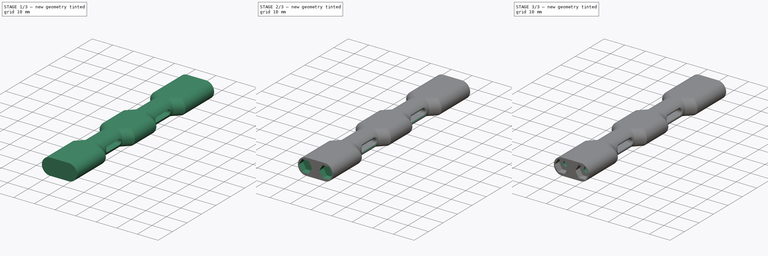
[diagram: build sequence overview — one tinted view per stage of 3, left to right]
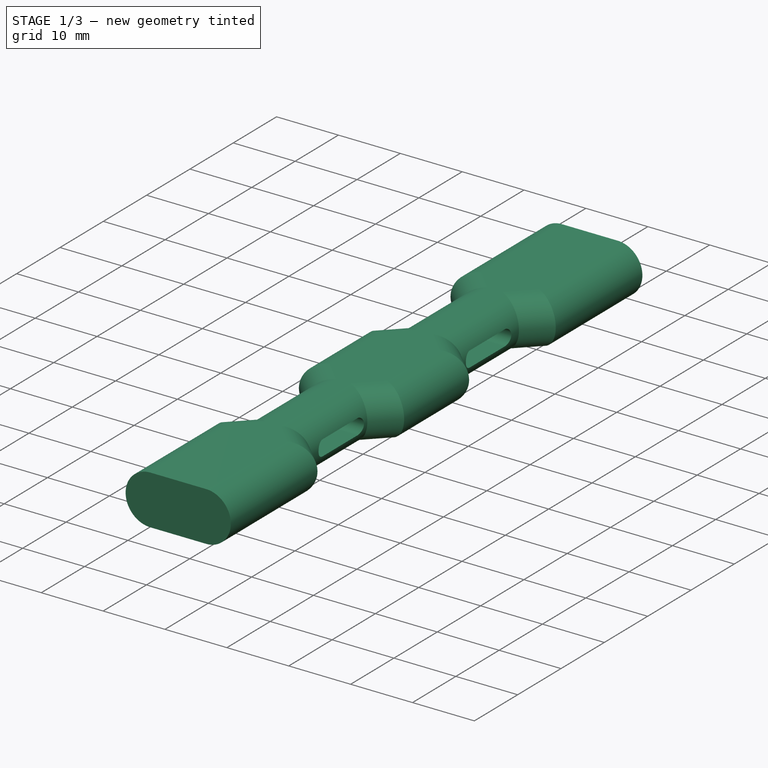
[diagram: stage 1 of 3 — iso view after this stage's code; geometry added in this stage tinted green]
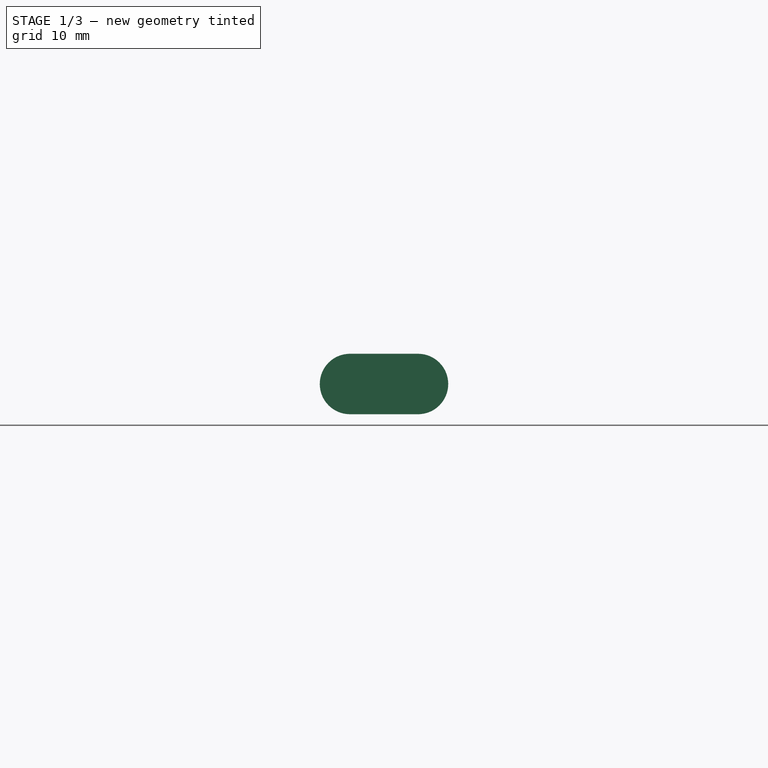
[diagram: stage 1 of 3 — front view after this stage's code; geometry added in this stage tinted green]
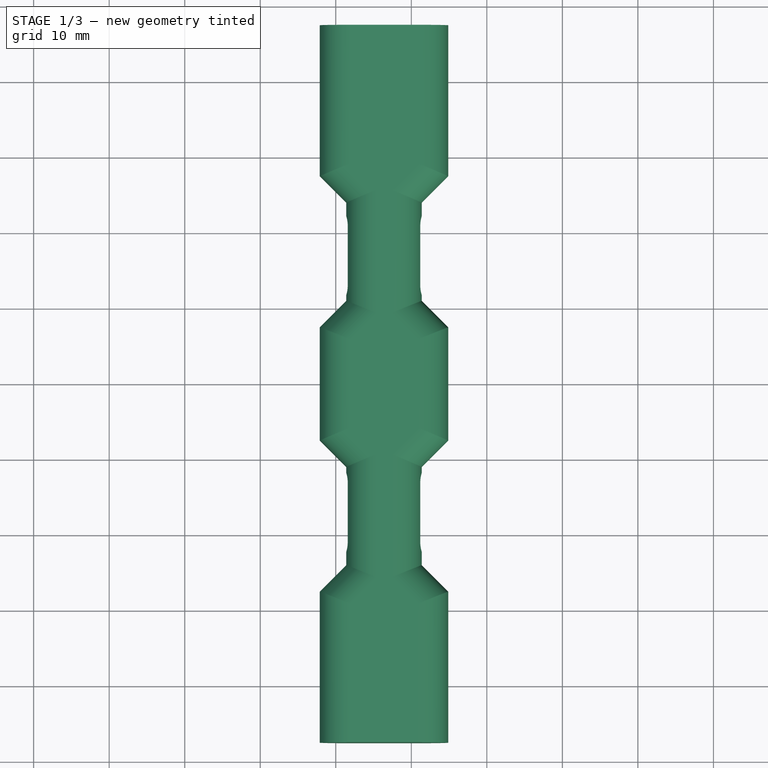
[diagram: stage 1 of 3 — top view after this stage's code; geometry added in this stage tinted green]
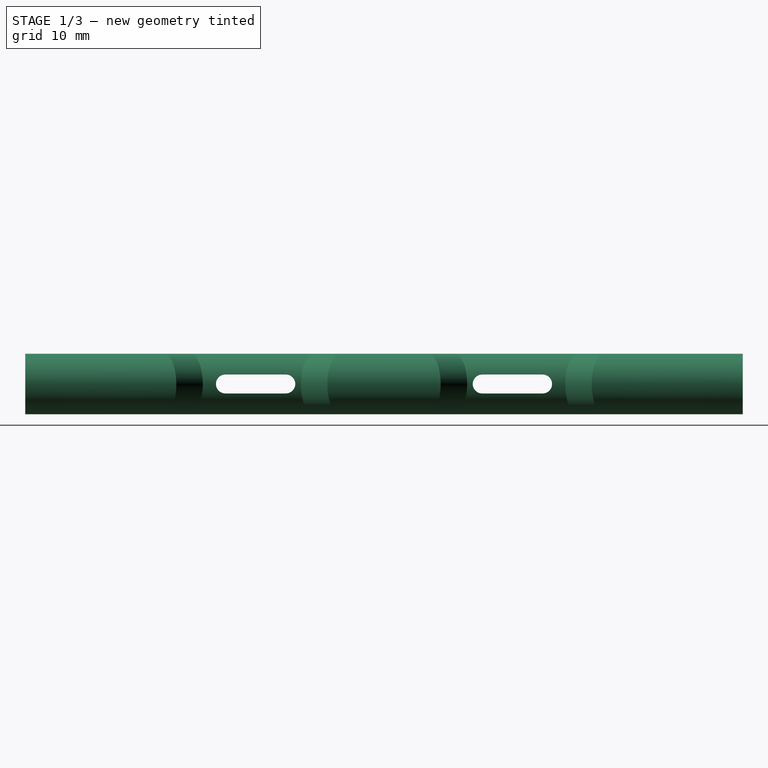
[diagram: stage 1 of 3 — right view after this stage's code; geometry added in this stage tinted green]
FCSTD DOCUMENT  (FreeCAD 0.21R33771 (Git))
Label: spine
License: All rights reserved
LicenseURL: https://en.wikipedia.org/wiki/All_rights_reserved
objects: Sketcher::SketchObject×6, PartDesign::Pocket×5, PartDesign::Fillet×2, PartDesign::Pad×1, PartDesign::Body×1, App::Part×1
note: 23 computed .brp shape members not serialized (recipe doc carries the construction recipe); baked Part::Feature solids carry a one-line shape summary decoded from their .brp

FEATURE [Sketcher::SketchObject] Sketch057
  AttachmentOffset = pos=(116.5,0,-42.5) rot=(0,0,1;0rad)
  FullyConstrained = true
  MapMode = 5
  Placement = pos=(116.5,42.5,9.4e-15) rot=(1,0,0;1.5708rad)
  Support = -> [XZ_Plane055]
  sketch-geometry (2):
    g0: Circle CenterX=-5 CenterY=4 CenterZ=0 NormalX=0 NormalY=0 NormalZ=1 AngleXU=0 Radius=1.25
    g1: Circle CenterX=5 CenterY=4 CenterZ=0 NormalX=0 NormalY=0 NormalZ=1 AngleXU=0 Radius=1.25
  constraints (6):
    c: Equal(g0,g1)
    c: Diameter(g0) = 2.5
    c: Horizontal(g0,g1)
    c: DistanceX(g0,g1) = 10
    c: DistanceY(g-1,g0) = 4
    c: DistanceX(g0,g-1) = 5
FEATURE [Sketcher::SketchObject] Sketch056
  AttachmentOffset = pos=(116.5,0,-47.5) rot=(0,0,1;0rad)
  FullyConstrained = true
  MapMode = 5
  Placement = pos=(116.5,47.5,1.05e-14) rot=(1,0,0;1.5708rad)
  Support = -> [XZ_Plane055]
  sketch-geometry (14):
    g0: LineSegment StartX=-3.375 StartY=6.81458 StartZ=0 EndX=-6.625 EndY=6.81458 EndZ=0
    g1: LineSegment StartX=-6.625 StartY=6.81458 StartZ=0 EndX=-8.25 EndY=4 EndZ=0
    g2: LineSegment StartX=-8.25 StartY=4 StartZ=0 EndX=-6.625 EndY=1.18542 EndZ=0
    g3: LineSegment StartX=-6.625 StartY=1.18542 StartZ=0 EndX=-3.375 EndY=1.18542 EndZ=0
    g4: LineSegment StartX=-3.375 StartY=1.18542 StartZ=0 EndX=-1.75 EndY=4 EndZ=0
    g5: LineSegment StartX=-1.75 StartY=4 StartZ=0 EndX=-3.375 EndY=6.81458 EndZ=0
    g6: Circle CenterX=-5 CenterY=4 CenterZ=0 NormalX=0 NormalY=0 NormalZ=1 AngleXU=0 Radius=3.25
    g7: LineSegment StartX=3.375 StartY=6.81458 StartZ=0 EndX=1.75 EndY=4 EndZ=0
    g8: LineSegment StartX=1.75 StartY=4 StartZ=0 EndX=3.375 EndY=1.18542 EndZ=0
    g9: LineSegment StartX=3.375 StartY=1.18542 StartZ=0 EndX=6.625 EndY=1.18542 EndZ=0
    g10: LineSegment StartX=6.625 StartY=1.18542 StartZ=0 EndX=8.25 EndY=4 EndZ=0
    g11: LineSegment StartX=8.25 StartY=4 StartZ=0 EndX=6.625 EndY=6.81458 EndZ=0
    g12: LineSegment StartX=6.625 StartY=6.81458 StartZ=0 EndX=3.375 EndY=6.81458 EndZ=0
    g13: Circle CenterX=5 CenterY=4 CenterZ=0 NormalX=0 NormalY=0 NormalZ=1 AngleXU=0 Radius=3.25
  constraints (34):
    c: Coincident(g0,g1)
    c: Coincident(g1,g2)
    c: Coincident(g2,g3)
    c: Coincident(g3,g4)
    c: Coincident(g4,g5)
    c: Coincident(g5,g0)
    c: Equal(g0, g1-g5) x5
    c: PointOnObject(g0,g6)
    c: PointOnObject(g1,g6)
    c: PointOnObject(g2,g6)
    c: PointOnObject(g3,g6)
    c: PointOnObject(g4,g6)
    c: PointOnObject(g5,g6)
    c: Coincident(g7,g8)
    c: Coincident(g8,g9)
    c: Coincident(g9,g10)
    c: Coincident(g10,g11)
    c: Coincident(g11,g12)
    c: Coincident(g12,g7)
    c: Equal(g7, g8-g12) x5
    c: PointOnObject(g7,g13)
    c: PointOnObject(g8,g13)
    c: PointOnObject(g9,g13)
    c: PointOnObject(g10,g13)
    c: PointOnObject(g11,g13)
    c: PointOnObject(g12,g13)
    c: Equal(g6,g13)
    c: Horizontal(g12)
    c: Diameter(g6) = 6.5
    c: Horizontal(g6,g13)
    c: DistanceY(g-1,g13) = 4
    c: DistanceX(g-1,g13) = 5
    c: DistanceX(g6,g-1) = 5
    c: Horizontal(g0)
FEATURE [Sketcher::SketchObject] Sketch055
  AttachmentOffset = pos=(116.5,0,47.5) rot=(0,0,1;0rad)
  FullyConstrained = true
  MapMode = 5
  Placement = pos=(116.5,-47.5,-1.05e-14) rot=(1,0,0;1.5708rad)
  Support = -> [XZ_Plane055]
  sketch-geometry (14):
    g0: LineSegment StartX=-3.375 StartY=6.81458 StartZ=0 EndX=-6.625 EndY=6.81458 EndZ=0
    g1: LineSegment StartX=-6.625 StartY=6.81458 StartZ=0 EndX=-8.25 EndY=4 EndZ=0
    g2: LineSegment StartX=-8.25 StartY=4 StartZ=0 EndX=-6.625 EndY=1.18542 EndZ=0
    g3: LineSegment StartX=-6.625 StartY=1.18542 StartZ=0 EndX=-3.375 EndY=1.18542 EndZ=0
    g4: LineSegment StartX=-3.375 StartY=1.18542 StartZ=0 EndX=-1.75 EndY=4 EndZ=0
    g5: LineSegment StartX=-1.75 StartY=4 StartZ=0 EndX=-3.375 EndY=6.81458 EndZ=0
    g6: Circle CenterX=-5 CenterY=4 CenterZ=0 NormalX=0 NormalY=0 NormalZ=1 AngleXU=0 Radius=3.25
    g7: LineSegment StartX=3.375 StartY=6.81458 StartZ=0 EndX=1.75 EndY=4 EndZ=0
    g8: LineSegment StartX=1.75 StartY=4 StartZ=0 EndX=3.375 EndY=1.18542 EndZ=0
    g9: LineSegment StartX=3.375 StartY=1.18542 StartZ=0 EndX=6.625 EndY=1.18542 EndZ=0
    g10: LineSegment StartX=6.625 StartY=1.18542 StartZ=0 EndX=8.25 EndY=4 EndZ=0
    g11: LineSegment StartX=8.25 StartY=4 StartZ=0 EndX=6.625 EndY=6.81458 EndZ=0
    g12: LineSegment StartX=6.625 StartY=6.81458 StartZ=0 EndX=3.375 EndY=6.81458 EndZ=0
    g13: Circle CenterX=5 CenterY=4 CenterZ=0 NormalX=0 NormalY=0 NormalZ=1 AngleXU=0 Radius=3.25
  constraints (34):
    c: Coincident(g0,g1)
    c: Coincident(g1,g2)
    c: Coincident(g2,g3)
    c: Coincident(g3,g4)
    c: Coincident(g4,g5)
    c: Coincident(g5,g0)
    c: Equal(g0, g1-g5) x5
    c: PointOnObject(g0,g6)
    c: PointOnObject(g1,g6)
    c: PointOnObject(g2,g6)
    c: PointOnObject(g3,g6)
    c: PointOnObject(g4,g6)
    c: PointOnObject(g5,g6)
    c: Coincident(g7,g8)
    c: Coincident(g8,g9)
    c: Coincident(g9,g10)
    c: Coincident(g10,g11)
    c: Coincident(g11,g12)
    c: Coincident(g12,g7)
    c: Equal(g7, g8-g12) x5
    c: PointOnObject(g7,g13)
    c: PointOnObject(g8,g13)
    c: PointOnObject(g9,g13)
    c: PointOnObject(g10,g13)
    c: PointOnObject(g11,g13)
    c: PointOnObject(g12,g13)
    c: Equal(g6,g13)
    c: Horizontal(g12)
    c: Diameter(g6) = 6.5
    c: Horizontal(g6,g13)
    c: DistanceY(g-1,g13) = 4
    c: DistanceX(g-1,g13) = 5
    c: DistanceX(g6,g-1) = 5
    c: Horizontal(g0)
FEATURE [Sketcher::SketchObject] Sketch054
  FullyConstrained = true
  MapMode = 5
  Placement = pos=(0,0,0) rot=(0.57735,0.57735,0.57735;2.0944rad)
  Support = -> [YZ_Plane055]
  sketch-geometry (8):
    g0: ArcOfCircle CenterX=-21 CenterY=4 CenterZ=0 NormalX=0 NormalY=0 NormalZ=1 AngleXU=0 Radius=1.25 StartAngle=1.5708 EndAngle=4.71239
    g1: ArcOfCircle CenterX=-13 CenterY=4 CenterZ=0 NormalX=0 NormalY=0 NormalZ=1 AngleXU=0 Radius=1.25 StartAngle=4.71239 EndAngle=7.85398
    g2: LineSegment StartX=-21 StartY=2.75 StartZ=0 EndX=-13 EndY=2.75 EndZ=0
    g3: LineSegment StartX=-13 StartY=5.25 StartZ=0 EndX=-21 EndY=5.25 EndZ=0
    g4: ArcOfCircle CenterX=13 CenterY=4 CenterZ=0 NormalX=0 NormalY=0 NormalZ=1 AngleXU=0 Radius=1.25 StartAngle=1.5708 EndAngle=4.71239
    g5: ArcOfCircle CenterX=21 CenterY=4 CenterZ=0 NormalX=0 NormalY=0 NormalZ=1 AngleXU=0 Radius=1.25 StartAngle=4.71239 EndAngle=7.85398
    g6: LineSegment StartX=13 StartY=2.75 StartZ=0 EndX=21 EndY=2.75 EndZ=0
    g7: LineSegment StartX=21 StartY=5.25 StartZ=0 EndX=13 EndY=5.25 EndZ=0
  constraints (20):
    c: Tangent(g0,g2) = -1.5708
    c: Tangent(g2,g1) = -1.5708
    c: Tangent(g1,g3) = -1.5708
    c: Tangent(g3,g0) = -1.5708
    c: Equal(g0,g1)
    c: Tangent(g4,g6) = -1.5708
    c: Tangent(g6,g5) = -1.5708
    c: Tangent(g5,g7) = -1.5708
    c: Tangent(g7,g4) = -1.5708
    c: Equal(g4,g5)
    c: Equal(g4,g0)
    c: Horizontal(g0,g1)
    c: Horizontal(g4,g5)
    c: Horizontal(g4,g1)
    c: Equal(g7,g3)
    c: DistanceY(g-1,g1) = 4
    c: DistanceY(g0,g0) = 2.5
    c: DistanceX(g3,g3) = 8
    c: DistanceX(g1,g-1) = 13
    c: DistanceX(g-1,g4) = 13
FEATURE [Sketcher::SketchObject] Sketch053
  FullyConstrained = false
  MapMode = 5
  Support = -> [XY_Plane055]
  sketch-geometry (20):
    g0: LineSegment StartX=107.885 StartY=47.5 StartZ=0 EndX=107.885 EndY=27.5 EndZ=0
    g1: LineSegment StartX=107.885 StartY=27.5 StartZ=0 EndX=111.385 EndY=24 EndZ=0
    g2: LineSegment StartX=111.385 StartY=24 StartZ=0 EndX=111.385 EndY=11 EndZ=0
    g3: LineSegment StartX=111.385 StartY=11 StartZ=0 EndX=107.885 EndY=7.5 EndZ=0
    g4: LineSegment StartX=107.885 StartY=7.5 StartZ=0 EndX=107.885 EndY=-7.5 EndZ=0
    g5: LineSegment StartX=107.885 StartY=-7.5 StartZ=0 EndX=111.385 EndY=-11 EndZ=0
    g6: LineSegment StartX=111.385 StartY=-11 StartZ=0 EndX=111.385 EndY=-24 EndZ=0
    g7: LineSegment StartX=111.385 StartY=-24 StartZ=0 EndX=107.885 EndY=-27.5 EndZ=0
    g8: LineSegment StartX=107.885 StartY=-27.5 StartZ=0 EndX=107.885 EndY=-47.5 EndZ=0
    g9: LineSegment StartX=107.885 StartY=-47.5 StartZ=0 EndX=124.885 EndY=-47.5 EndZ=0
    g10: LineSegment StartX=124.885 StartY=-47.5 StartZ=0 EndX=124.885 EndY=-27.5 EndZ=0
    g11: LineSegment StartX=124.885 StartY=-27.5 StartZ=0 EndX=121.385 EndY=-24 EndZ=0
    g12: LineSegment StartX=121.385 StartY=-24 StartZ=0 EndX=121.385 EndY=-11 EndZ=0
    g13: LineSegment StartX=121.385 StartY=-11 StartZ=0 EndX=124.885 EndY=-7.5 EndZ=0
    g14: LineSegment StartX=124.885 StartY=-7.5 StartZ=0 EndX=124.885 EndY=7.5 EndZ=0
    g15: LineSegment StartX=124.885 StartY=7.5 StartZ=0 EndX=121.385 EndY=11 EndZ=0
    g16: LineSegment StartX=121.385 StartY=11 StartZ=0 EndX=121.385 EndY=24 EndZ=0
    g17: LineSegment StartX=121.385 StartY=24 StartZ=0 EndX=124.885 EndY=27.5 EndZ=0
    g18: LineSegment StartX=124.885 StartY=27.5 StartZ=0 EndX=124.885 EndY=47.5 EndZ=0
    g19: LineSegment StartX=124.885 StartY=47.5 StartZ=0 EndX=107.885 EndY=47.5 EndZ=0
  constraints (59):
    c: Vertical(g0)
    c: Coincident(g0,g1)
    c: Coincident(g1,g2)
    c: Vertical(g2)
    c: Coincident(g2,g3)
    c: Coincident(g3,g4)
    c: Vertical(g4)
    c: Coincident(g4,g5)
    c: Coincident(g5,g6)
    c: Vertical(g6)
    c: Coincident(g6,g7)
    c: Coincident(g7,g8)
    c: Vertical(g8)
    c: Coincident(g8,g9)
    c: Horizontal(g9)
    c: Coincident(g9,g10)
    c: Vertical(g10)
    c: Coincident(g10,g11)
    c: Coincident(g11,g12)
    c: Vertical(g12)
    c: Coincident(g12,g13)
    c: Coincident(g13,g14)
    c: Vertical(g14)
    c: Coincident(g14,g15)
    c: Coincident(g15,g16)
    c: Vertical(g16)
    c: Coincident(g16,g17)
    c: Coincident(g17,g18)
    c: Vertical(g18)
    c: Coincident(g18,g19)
    c: Coincident(g19,g0)
    c: Horizontal(g19)
    c: Equal(g4,g14)
    c: Equal(g19,g9)
    c: Equal(g0,g18)
    c: Equal(g18,g8)
    c: Equal(g8,g10)
    c: Equal(g2,g16)
    c: Equal(g16,g12)
    c: Equal(g12,g6)
    c: Horizontal(g1,g16)
    c: Horizontal(g3,g14)
    c: Horizontal(g5,g12)
    c: Angle(g1,g2) = 2.35619
    c: Angle(g2,g3) = 2.35619
    c: Angle(g16,g17) = 2.35619
    c: Angle(g15) = 2.35619
    c: Angle(g12,g13) = 2.35619
    c: Angle(g11,g12) = 2.35619
    c: Angle(g5,g6) = 2.35619
    c: Angle(g6,g7) = 2.35619
    c: Equal(g1,g3)
    c: DistanceY(g-1,g3) = 7.5
    c: DistanceY(g4,g-1) = 7.5
    c: DistanceY(g0,g0) = 20
    c: DistanceX(g1,g16) = 10
    c: DistanceX(g5,g12) = 10
    c: DistanceY(g3,g0) = 20
    c: DistanceX(g3,g14) = 17
FEATURE [PartDesign::Pad] Pad014
  Direction = (0,0,1)
  Length = 8
  Length2 = 10
  Profile = -> Sketch053
  ReferenceAxis = -> Sketch053 [N_Axis]
  Type = 0
FEATURE [PartDesign::Fillet] Fillet032  label="Fillet033"
  Base = -> Pad014 [Edge46,Edge43,Edge40,Edge37,Edge34,Edge28,Edge25,Edge22,Edge19,Edge16,Edge13,Edge10,Edge7,Edge4,Edge58,Edge52,Edge55,Edge51,Edge54,Edge57,Edge3,Edge49,Edge48,Edge45,Edge42,Edge39,Edge36,Edge33,Edge27,Edge24,Edge21,Edge18,Edge15,Edge12,Edge9,Edge6]
  BaseFeature = -> Pad014
  Radius = 3.99
  SupportTransform = false
  UseAllEdges = false
FEATURE [PartDesign::Pocket] Pocket021
  BaseFeature = -> Fillet032
  Direction = (-1,2e-16,-3e-16)
  Length = 5
  Length2 = 5
  Midplane = true
  Profile = -> Sketch054
  ReferenceAxis = -> Sketch054 [N_Axis]
  Type = 1
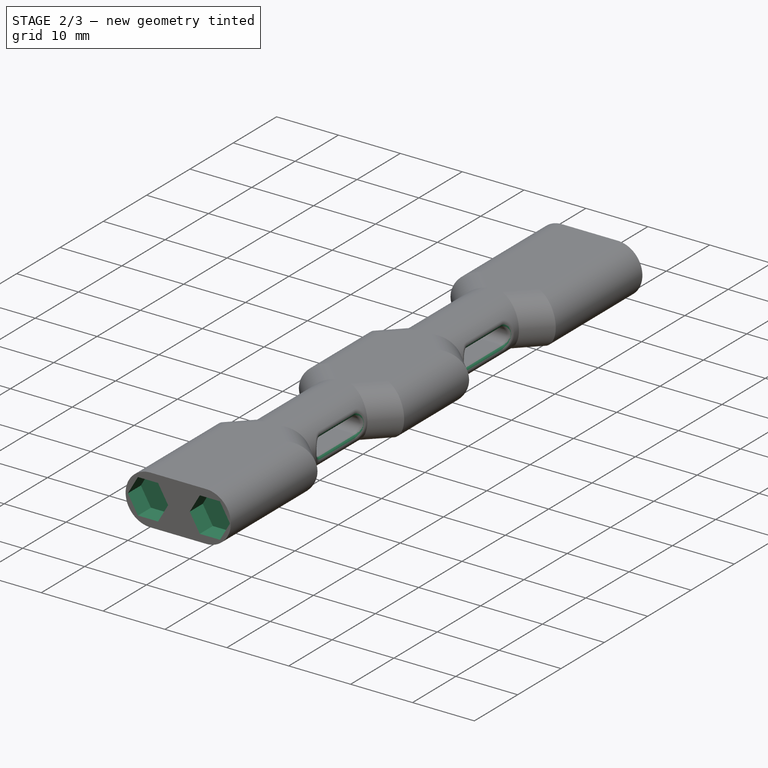
[diagram: stage 2 of 3 — iso view after this stage's code; geometry added in this stage tinted green]
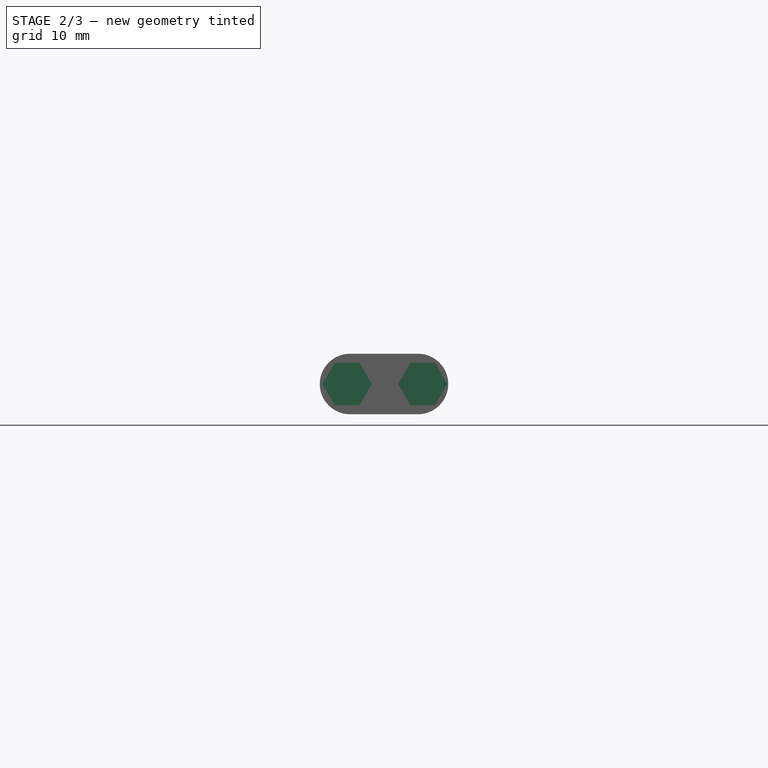
[diagram: stage 2 of 3 — front view after this stage's code; geometry added in this stage tinted green]
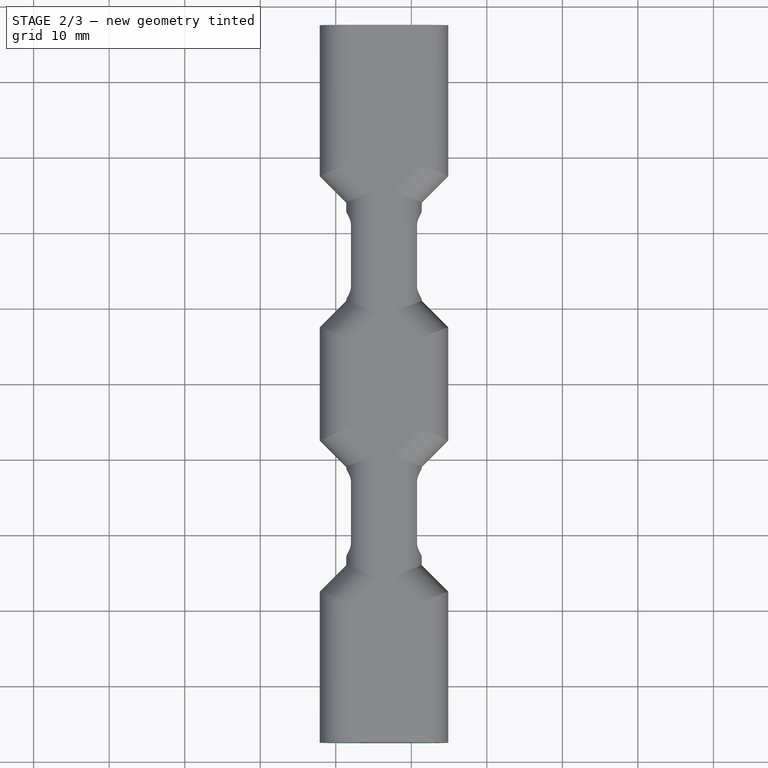
[diagram: stage 2 of 3 — top view after this stage's code; geometry added in this stage tinted green]
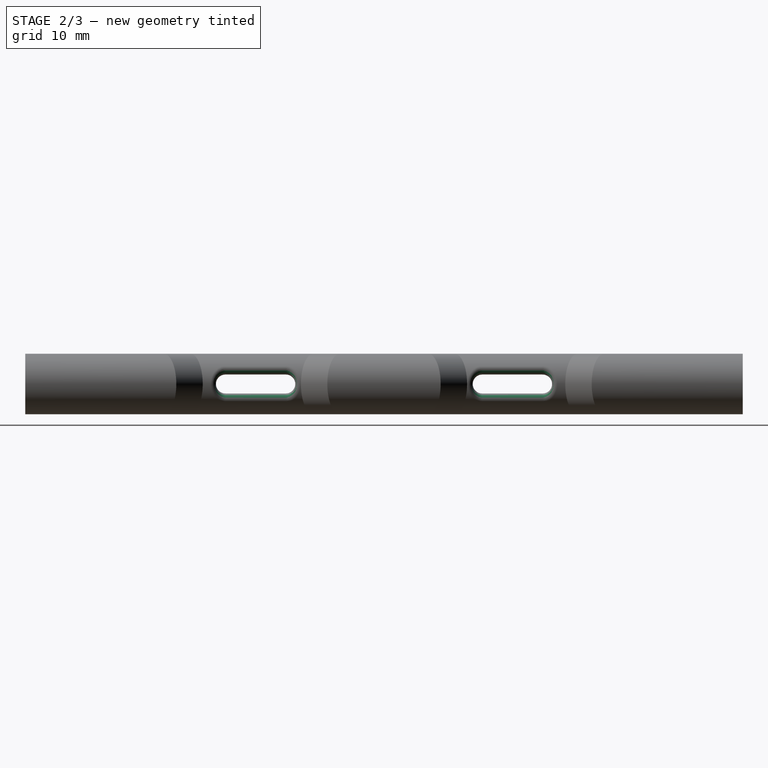
[diagram: stage 2 of 3 — right view after this stage's code; geometry added in this stage tinted green]
FEATURE [PartDesign::Fillet] Fillet033  label="Fillet034"
  Base = -> Pocket021 [Edge133,Edge134,Edge126,Edge127,Edge128,Edge132,Edge155,Edge150,Edge149,Edge156,Edge154,Edge151,Edge91,Edge92,Edge93,Edge113,Edge114,Edge115,Edge86,Edge85,Edge87,Edge109,Edge110,Edge108]
  BaseFeature = -> Pocket021
  Radius = 0.7
  SupportTransform = false
  UseAllEdges = false
FEATURE [PartDesign::Pocket] Pocket022
  BaseFeature = -> Fillet033
  Direction = (0,1,2e-16)
  Length = 3
  Length2 = 5
  Profile = -> Sketch055
  ReferenceAxis = -> Sketch055 [N_Axis]
  Type = 0
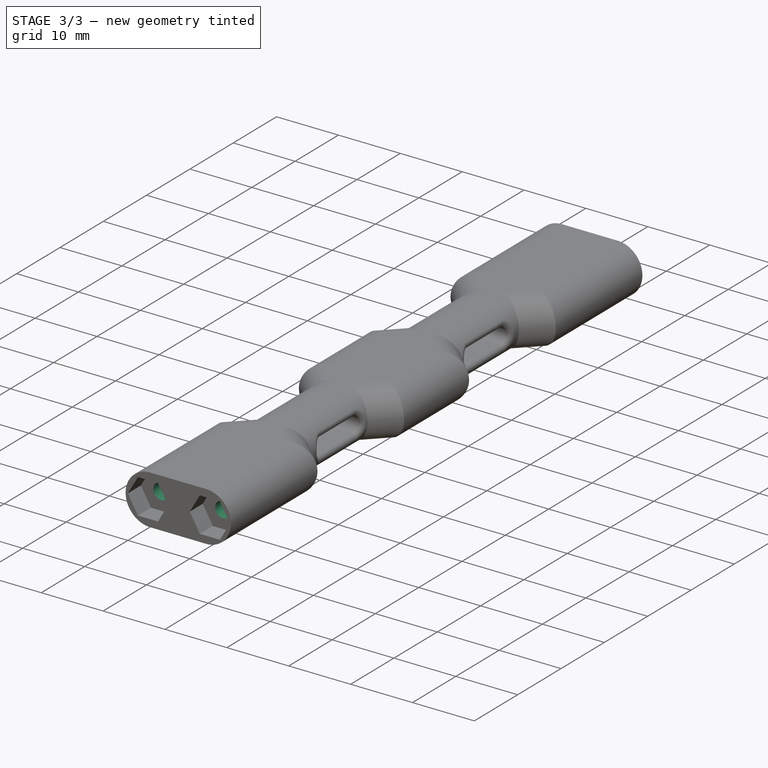
[diagram: stage 3 of 3 — iso view after this stage's code; geometry added in this stage tinted green]
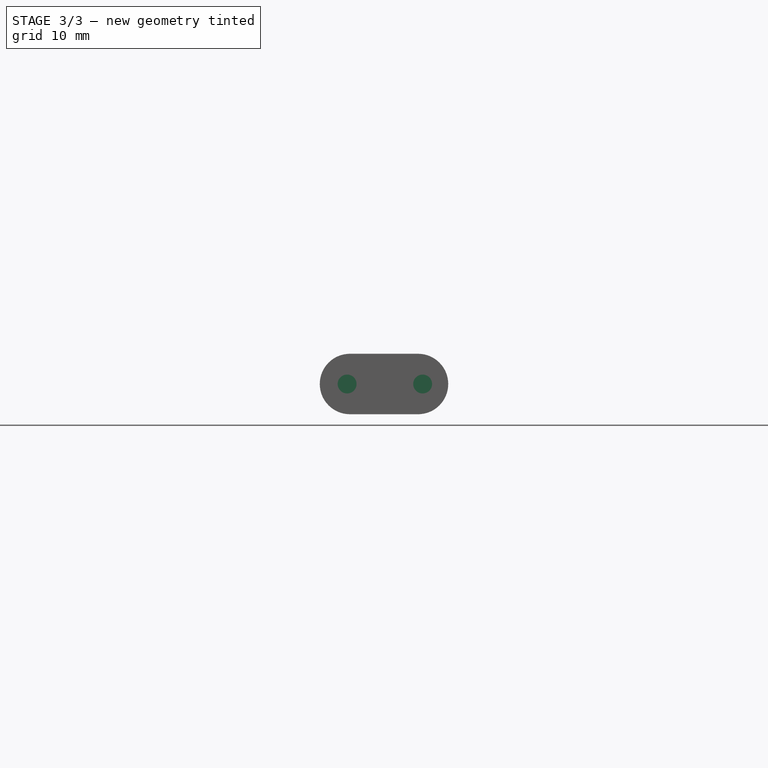
[diagram: stage 3 of 3 — front view after this stage's code; geometry added in this stage tinted green]
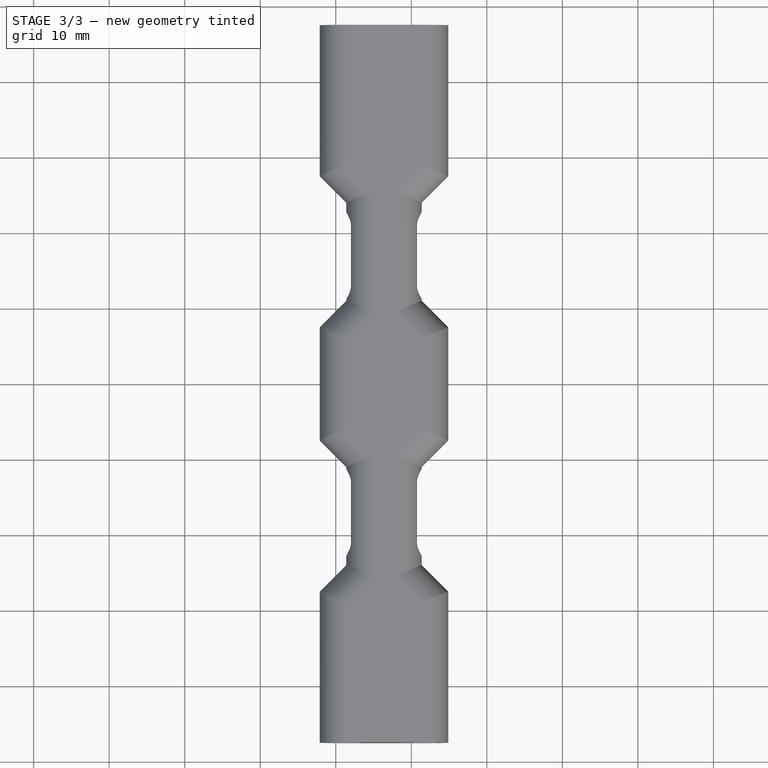
[diagram: stage 3 of 3 — top view after this stage's code; geometry added in this stage tinted green]
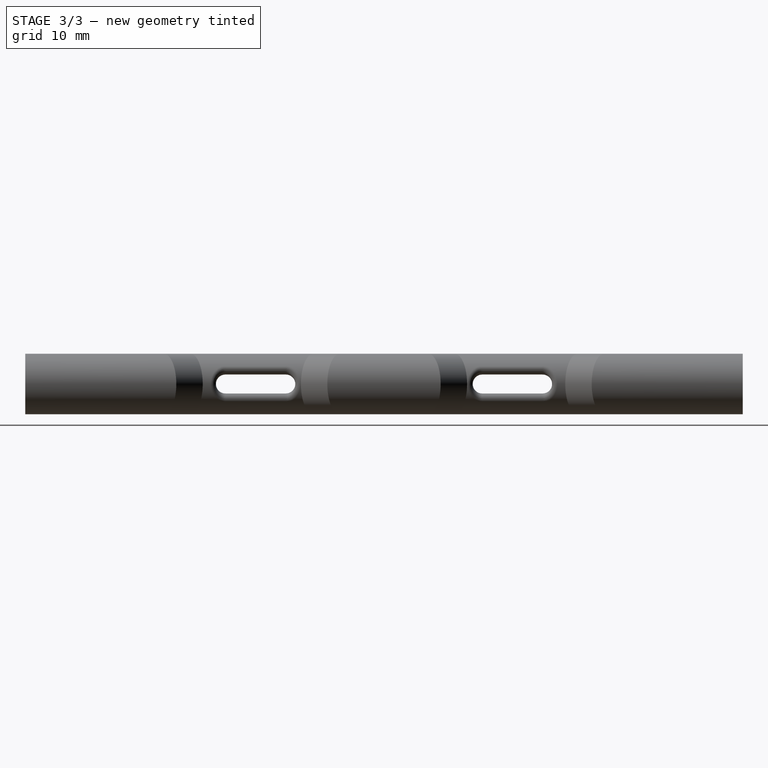
[diagram: stage 3 of 3 — right view after this stage's code; geometry added in this stage tinted green]
FEATURE [PartDesign::Pocket] Pocket023
  BaseFeature = -> Pocket022
  Direction = (0,1,2e-16)
  Length = 5
  Length2 = 5
  Profile = -> Sketch056
  ReferenceAxis = -> Sketch056 [N_Axis]
  Reversed = true
  Type = 0
FEATURE [PartDesign::Pocket] Pocket024
  BaseFeature = -> Pocket023
  Direction = (0,1,2e-16)
  Length = 5
  Length2 = 5
  Profile = -> Sketch057
  ReferenceAxis = -> Sketch057 [N_Axis]
  Reversed = true
  Type = 0
FEATURE [Sketcher::SketchObject] Sketch058
  AttachmentOffset = pos=(116.5,-44.5,0) rot=(1,0,0;1.5708rad)
  FullyConstrained = true
  MapMode = 2
  Placement = pos=(116.5,-44.5,0) rot=(1,0,0;1.5708rad)
  Support = -> [Pocket024]
  sketch-geometry (2):
    g0: Circle CenterX=-5 CenterY=4 CenterZ=0 NormalX=0 NormalY=0 NormalZ=1 AngleXU=0 Radius=1.25
    g1: Circle CenterX=5 CenterY=4 CenterZ=0 NormalX=0 NormalY=0 NormalZ=1 AngleXU=0 Radius=1.25
  constraints (6):
    c: Equal(g0,g1)
    c: Diameter(g0) = 2.5
    c: Horizontal(g0,g1)
    c: DistanceX(g0,g1) = 10
    c: DistanceY(g-1,g0) = 4
    c: DistanceX(g0,g-1) = 5
FEATURE [PartDesign::Pocket] Pocket025
  BaseFeature = -> Pocket024
  Direction = (0,1,-2e-16)
  Length = 5
  Length2 = 5
  Profile = -> Sketch058
  ReferenceAxis = -> Sketch058 [N_Axis]
  Type = 0
FEATURE [PartDesign::Body] Body013  label="spine001"
  Group = -> [Sketch053,Pad014,Fillet032,Sketch054,Pocket021,Fillet033,Sketch055,Pocket022,Sketch056,Pocket023,Sketch057,Pocket024,Sketch058,Pocket025]
  Origin = -> Origin055
  Tip = -> Pocket025
FEATURE [App::Part] Part026  label="new-hinge001"
  Group = -> [Body013]
  Origin = -> Origin054
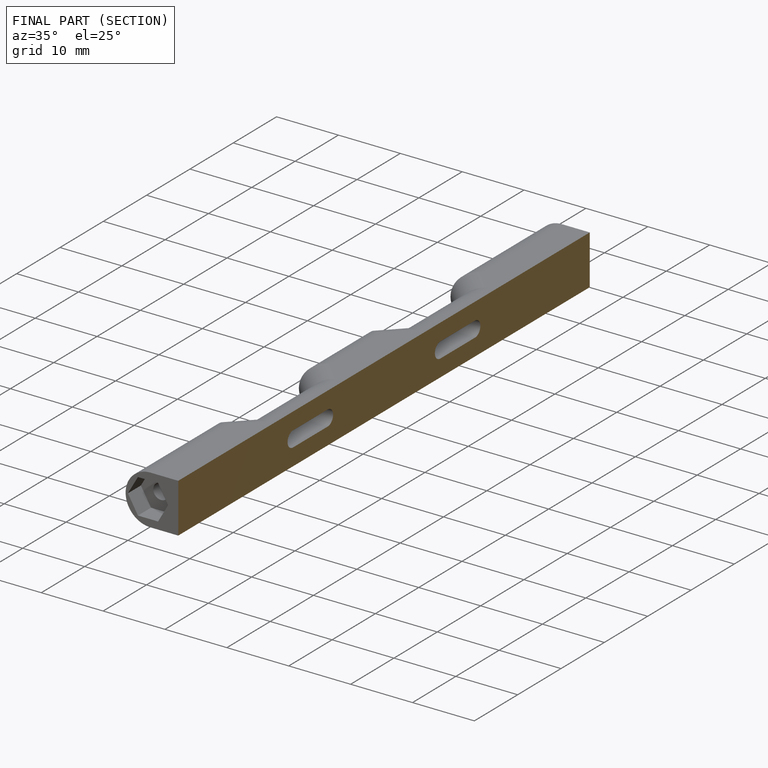
[diagram: finished part — half-section view (interior)]
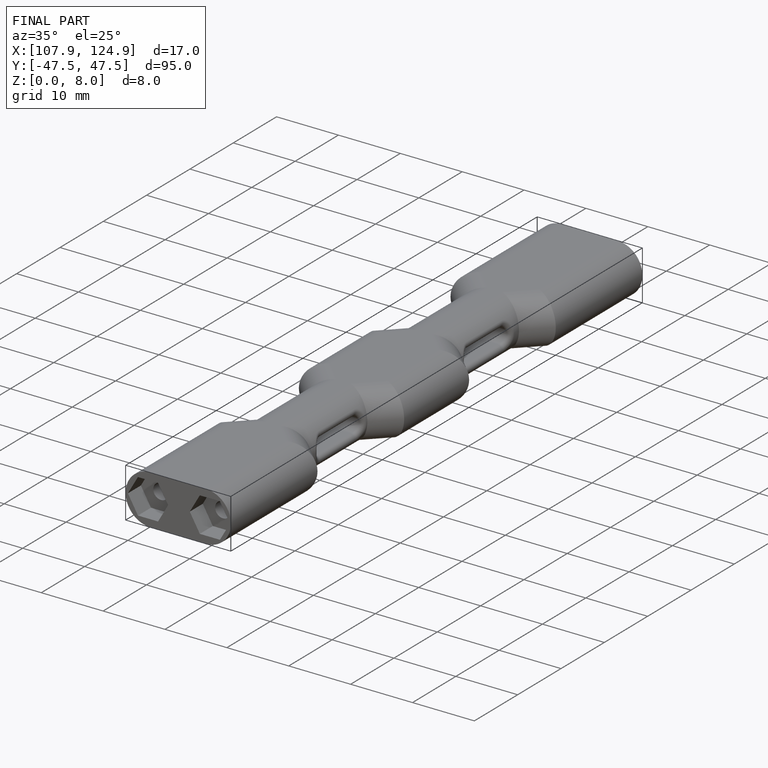
[diagram: finished part — iso view with bounding-box wireframe]
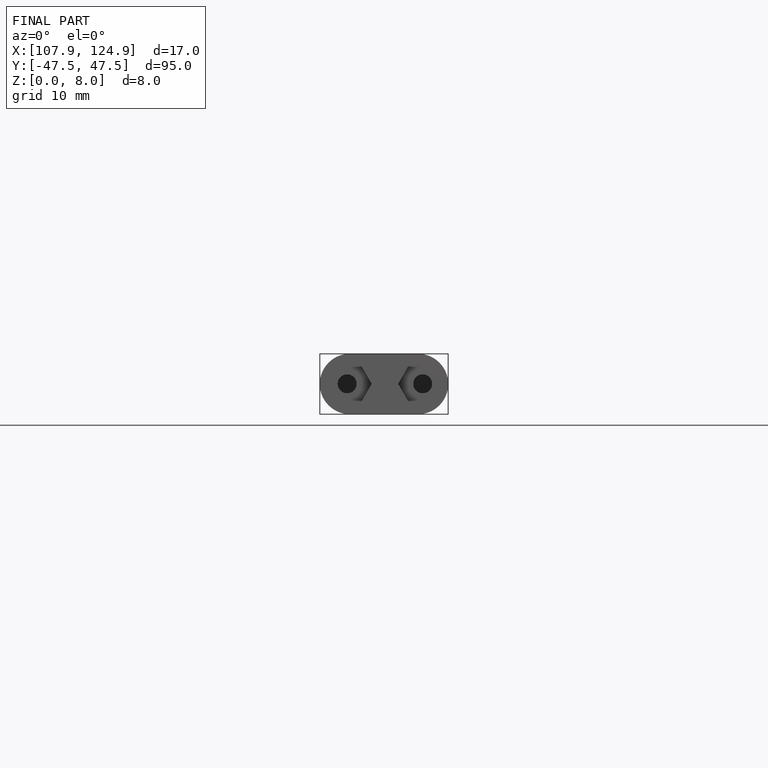
[diagram: finished part — front view with bounding-box wireframe]
